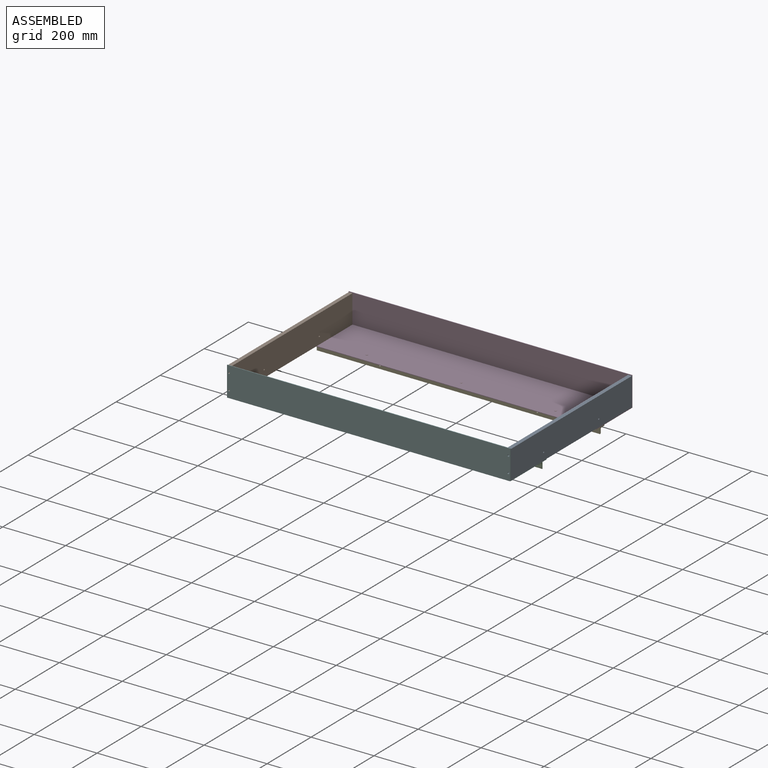
[diagram: assembled view]
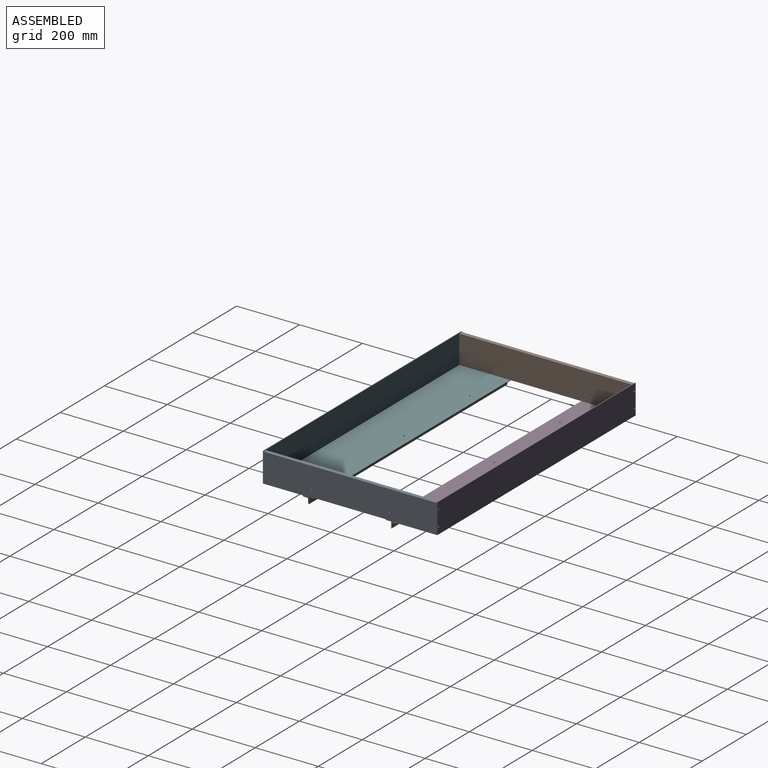
[diagram: assembled view, second angle]
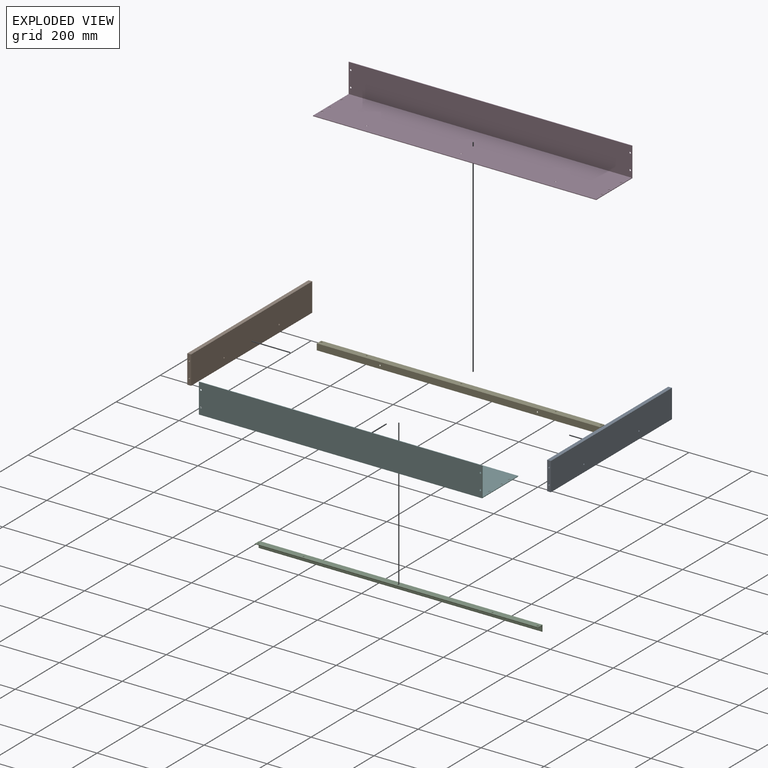
[diagram: exploded view]
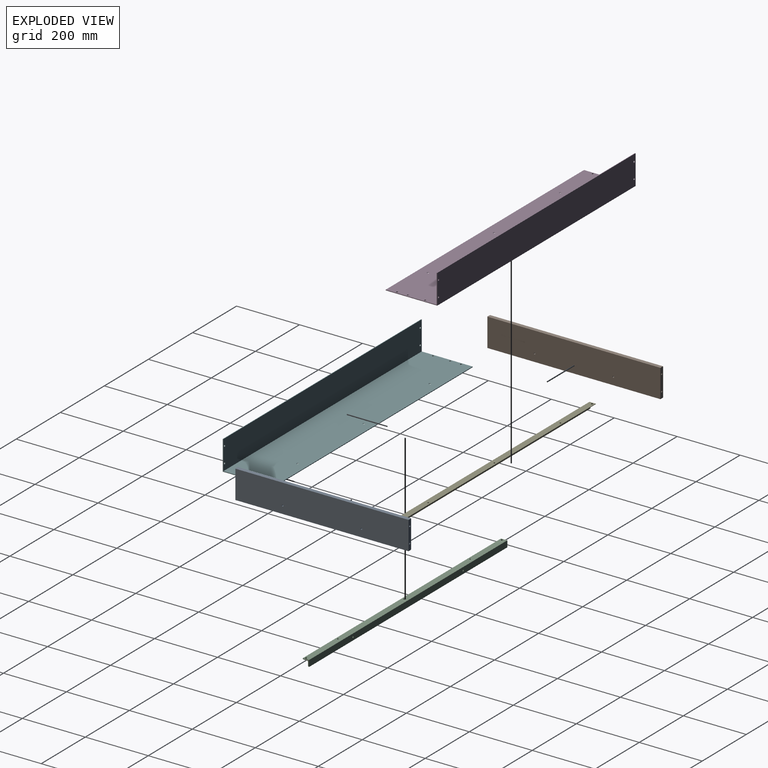
[diagram: exploded view, second angle]
ASSEMBLY  parts=6 mates=5
PART A: 28 faces, bbox 550x12x90 mm
  f0: plane 90x12mm, normal (1,0,0), area 1040.7mm2, adj f1,f3,f4,f5,f20,f22
  f1: plane 550x12mm, normal (0,0,1), area 6600mm2, adj f0,f2,f4,f5
  f2: plane 90x12mm, normal (-1,0,0), area 1040.7mm2, adj f1,f3,f4,f5,f24,f26
  f3: plane 550x12mm, normal (0,0,-1), area 6482.2mm2, adj f0,f2,f4,f5,f8,f10,f12,f14
  f4: plane 550x90mm, normal (0,-1,0), area 49460.7mm2, adj f0,f1,f2,f3,f6,f7
  f5: plane 550x90mm, normal (0,1,0), area 49460.7mm2, adj f0,f1,f2,f3,f6,f7
  f6: cylinder r=2.5mm len=12mm, axis (0,-1,0), area 188.5mm2, adj f4,f5
  f7: cylinder r=2.5mm len=12mm, axis (0,-1,0), area 188.5mm2, adj f4,f5
  f8: cylinder r=2.5mm len=15mm, axis (0,0,-1), area 235.6mm2, adj f3,f9
  f9: plane 5x5mm, normal (0,0,-1), area 19.6mm2, adj f8
  f10: cylinder r=2.5mm len=15mm, axis (0,0,-1), area 235.6mm2, adj f3,f11
  f11: plane 5x5mm, normal (0,0,-1), area 19.6mm2, adj f10
  f12: cylinder r=2.5mm len=15mm, axis (0,0,-1), area 235.6mm2, adj f3,f13
  f13: plane 5x5mm, normal (0,0,-1), area 19.6mm2, adj f12
  f14: cylinder r=2.5mm len=15mm, axis (0,0,-1), area 235.6mm2, adj f3,f15
  f15: plane 5x5mm, normal (0,0,-1), area 19.6mm2, adj f14
  f16: cylinder r=2.5mm len=15mm, axis (0,0,-1), area 235.6mm2, adj f3,f17
  f17: plane 5x5mm, normal (0,0,-1), area 19.6mm2, adj f16
  f18: cylinder r=2.5mm len=15mm, axis (0,0,-1), area 235.6mm2, adj f3,f19
  f19: plane 5x5mm, normal (0,0,-1), area 19.6mm2, adj f18
  f20: cylinder r=2.5mm len=15mm, axis (1,0,0), area 235.6mm2, adj f0,f21
  f21: plane 5x5mm, normal (1,0,0), area 19.6mm2, adj f20
  f22: cylinder r=2.5mm len=15mm, axis (1,0,0), area 235.6mm2, adj f0,f23
  f23: plane 5x5mm, normal (1,0,0), area 19.6mm2, adj f22
  f24: cylinder r=2.5mm len=15mm, axis (-1,0,0), area 235.6mm2, adj f2,f25
  f25: plane 5x5mm, normal (-1,0,0), area 19.6mm2, adj f24
  f26: cylinder r=2.5mm len=15mm, axis (-1,0,0), area 235.6mm2, adj f2,f27
  f27: plane 5x5mm, normal (-1,0,0), area 19.6mm2, adj f26
PART B: same geometry as A
PART C: 16 faces, bbox 900x20x20 mm
  f0: plane 20x20mm, normal (1,0,0), area 109.1mm2, adj f2,f3,f4,f5,f6,f7,f8
  f1: plane 20x20mm, normal (-1,0,0), area 109.1mm2, adj f2,f3,f4,f5,f6,f7,f8
  f2: plane 900x20mm, normal (0,0,1), area 17960.7mm2, adj f0,f1,f3,f7,f14,f15
  f3: plane 900x20mm, normal (0,-1,0), area 17895.7mm2, adj f0,f1,f2,f6,f9,f10,f11,f12
  f4: plane 900x11mm, normal (0,1,0), area 9795.7mm2, adj f0,f1,f6,f8,f9,f10,f11,f12
  f5: plane 900x11mm, normal (0,0,-1), area 9860.7mm2, adj f0,f1,f7,f8,f14,f15
  f6: cylinder r=3mm len=900mm, axis (1,0,0), area 4241.2mm2, adj f0,f1,f3,f4
  f7: cylinder r=3mm len=900mm, axis (-1,0,0), area 4241.2mm2, adj f0,f1,f2,f5
  f8: cylinder r=3mm len=900mm, axis (1,0,0), area 4241.2mm2, adj f0,f1,f4,f5
  f9: cylinder r=3mm len=6mm, axis (0,-1,0), area 56.5mm2, adj f3,f4
  f10: cylinder r=3mm len=6mm, axis (0,-1,0), area 56.5mm2, adj f3,f4
  f11: cylinder r=2.25mm len=4.5mm, axis (0,-1,0), area 42.4mm2, adj f3,f4
  f12: cylinder r=2.25mm len=4.5mm, axis (0,-1,0), area 42.4mm2, adj f3,f4
  f13: cylinder r=2.25mm len=4.5mm, axis (0,-1,0), area 42.4mm2, adj f3,f4
  f14: cylinder r=2.5mm len=5mm, axis (0,0,1), area 47.1mm2, adj f2,f5
  f15: cylinder r=2.5mm len=5mm, axis (0,0,1), area 47.1mm2, adj f2,f5
PART D: 24 faces, bbox 900x94x164 mm
  f0: plane 164x94mm, normal (1,0,0), area 512mm2, adj f2,f3,f4,f5,f6,f7
  f1: plane 164x94mm, normal (-1,0,0), area 512mm2, adj f2,f3,f4,f5,f6,f7
  f2: plane 900x2mm, normal (0,-1,0), area 1800mm2, adj f0,f1,f4,f7
  f3: plane 900x2mm, normal (0,0,1), area 1800mm2, adj f0,f1,f5,f6
  f4: plane 900x94mm, normal (0,0,-1), area 84505mm2, adj f0,f1,f2,f5,f20,f21,f22,f23
  f5: plane 900x164mm, normal (0,1,0), area 147409.7mm2, adj f0,f1,f3,f4,f8,f9,f10,f11
  f6: plane 900x162mm, normal (0,-1,0), area 145506.7mm2, adj f0,f1,f3,f7,f8,f9,f10,f11
  f7: plane 900x92mm, normal (0,0,1), area 82705mm2, adj f0,f1,f2,f6,f20,f21,f22,f23
  f8: cylinder r=2.75mm len=5.5mm, axis (0,-1,0), area 34.6mm2, adj f5,f6
  f9: cylinder r=2.75mm len=5.5mm, axis (0,-1,0), area 34.6mm2, adj f5,f6
  f10: cylinder r=2.75mm len=5.5mm, axis (0,-1,0), area 34.6mm2, adj f5,f6
  f11: cylinder r=2.75mm len=5.5mm, axis (0,-1,0), area 34.6mm2, adj f5,f6
  f12: cylinder r=2.75mm len=5.5mm, axis (0,-1,0), area 34.6mm2, adj f5,f6
  f13: cylinder r=2.75mm len=5.5mm, axis (0,-1,0), area 34.6mm2, adj f5,f6
  f14: cylinder r=2.25mm len=4.5mm, axis (0,-1,0), area 3.5mm2, adj f5,f15
  f15: cone r=2.25mm half-angle=45deg, axis (0,-1,0), area 48.6mm2, adj f6,f14
  f16: cylinder r=2.25mm len=4.5mm, axis (0,-1,0), area 3.5mm2, adj f5,f17
  f17: cone r=2.25mm half-angle=45deg, axis (0,-1,0), area 48.6mm2, adj f6,f16
  f18: cylinder r=2.25mm len=4.5mm, axis (0,-1,0), area 3.5mm2, adj f5,f19
  f19: cone r=2.25mm half-angle=45deg, axis (0,-1,0), area 48.6mm2, adj f6,f18
  f20: cylinder r=2.75mm len=5.5mm, axis (0,0,-1), area 34.6mm2, adj f4,f7
  f21: cylinder r=2.75mm len=5.5mm, axis (0,0,-1), area 34.6mm2, adj f4,f7
  f22: cylinder r=2.75mm len=5.5mm, axis (0,0,-1), area 34.6mm2, adj f4,f7
  f23: cylinder r=2.75mm len=5.5mm, axis (0,0,-1), area 34.6mm2, adj f4,f7
PART E: same geometry as C
PART F: same geometry as D
PLACE A rot(axis=(0,0,-1),90deg) t=(140.81,-20.2,18.72)mm
PLACE B rot(axis=(0,0,-1),90deg) t=(-747.19,-20.2,18.72)mm
PLACE C rot(axis=(-1,0,0),90deg) t=(-309.19,-160.7,-48.28)mm
PLACE D rot(axis=(0,0.71,-0.71),180deg) t=(-309.19,174.8,-28.28)mm
PLACE E rot(axis=(0,0.71,-0.71),180deg) t=(-309.19,120.3,-48.28)mm
PLACE F rot(axis=(-1,0,0),90deg) t=(-309.19,-215.2,-28.28)mm
MATE fastened A.f22 <-> D.f22  axis (0,1,0) through (134.81,254.8,43.72)mm
MATE fastened E.f11 <-> D.f19  axis (0,0,1) through (-609.19,123.3,-28.28)mm
MATE fastened A.f22 <-> F.f20  axis (0,-1,0) through (134.81,-295.2,43.72)mm
MATE fastened C.f13 <-> F.f16  axis (0,0,1) through (-609.19,-163.7,-28.28)mm
MATE fastened B.f22 <-> D.f20  axis (0,1,0) through (-753.19,254.8,43.72)mm
